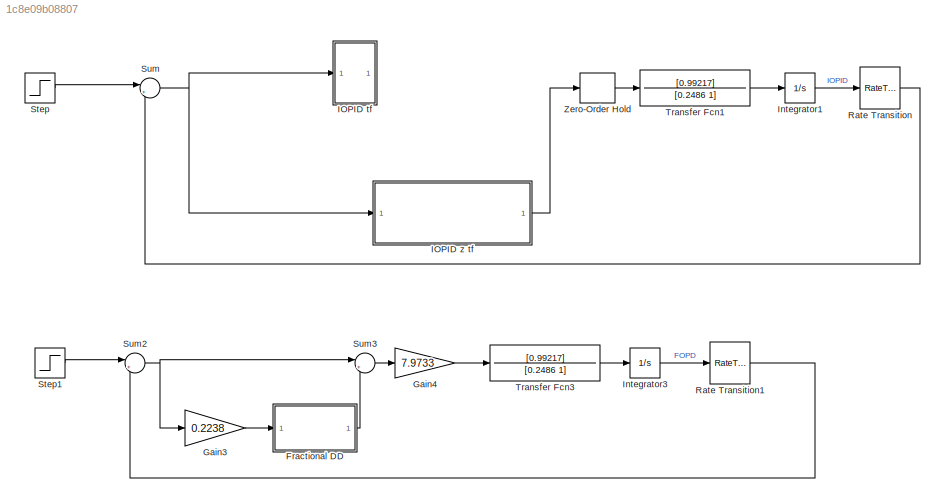
MODEL slx_1c8e09b08807
KIND model
CONFIG AbsTol = auto
CONFIG EnableMultiTasking = off
CONFIG FixedStep = 0.01
CONFIG MaxStep = auto
CONFIG MinStep = auto
CONFIG RelTol = 1e-3
CONFIG SampleTimeConstraint = Unconstrained
CONFIG Solver = ode14x
CONFIG SolverName = ode14x
CONFIG StartTime = 0.0
CONFIG StopTime = 10.0
WORKSPACE source: MAT-file member
WORKSPACE MCOS: class17 (value not decoded)
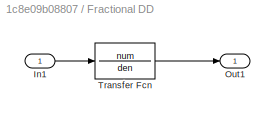
BLOCK [SubSystem] Fractional DD
  Ports = [1, 1]
  RequestExecContextInheritance = off
  Variant = off
BLOCK [Inport] Fractional DD/In1
  IconDisplay = Port number
BLOCK [Outport] Fractional DD/Out1
  IconDisplay = Port number
BLOCK [TransferFcn] Fractional DD/Transfer Fcn
  Denominator = den
  Numerator = num
BLOCK [Gain] Gain3
  Gain = 0.2238
  OutDataTypeStr = Inherit: Inherit via internal rule
  ParamDataTypeStr = Inherit: Inherit via internal rule
  SaturateOnIntegerOverflow = off
BLOCK [Gain] Gain4
  Gain = 7.9733
  OutDataTypeStr = Inherit: Inherit via internal rule
  ParamDataTypeStr = Inherit: Inherit via internal rule
  SaturateOnIntegerOverflow = off
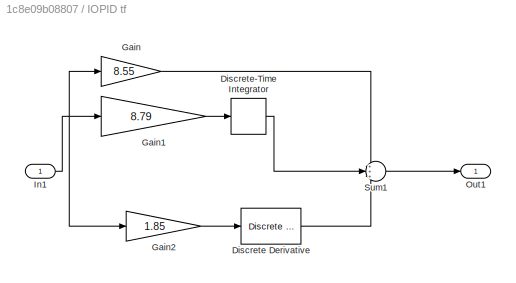
BLOCK [SubSystem] IOPID tf
  Commented = on
  Ports = [1, 1]
  RequestExecContextInheritance = off
  Variant = off
BLOCK [Reference] IOPID tf/Discrete Derivative  REF=simulink/Discrete/Discrete Derivative
  Ports = [1, 1]
  SourceBlock = simulink/Discrete/Discrete Derivative
  SourceProductBaseCode = SL
  SourceProductName = Simulink
  SourceType = Discrete Derivative
BLOCK [DiscreteIntegrator] IOPID tf/Discrete-Time Integrator
  ICPrevOutput = DiscIntNeverNeededParam
  ICPrevScaledInput = DiscIntNeverNeededParam
  InitialConditionSetting = State (most efficient)
  Ports = [1, 1]
  SampleTime = -1
BLOCK [Gain] IOPID tf/Gain
  Gain = 8.55
  OutDataTypeStr = Inherit: Inherit via internal rule
  ParamDataTypeStr = Inherit: Inherit via internal rule
  SaturateOnIntegerOverflow = off
BLOCK [Gain] IOPID tf/Gain1
  Gain = 8.79
  OutDataTypeStr = Inherit: Inherit via internal rule
  ParamDataTypeStr = Inherit: Inherit via internal rule
  SaturateOnIntegerOverflow = off
BLOCK [Gain] IOPID tf/Gain2
  Gain = 1.85
  OutDataTypeStr = Inherit: Inherit via internal rule
  ParamDataTypeStr = Inherit: Inherit via internal rule
  SaturateOnIntegerOverflow = off
BLOCK [Inport] IOPID tf/In1
  IconDisplay = Port number
BLOCK [Outport] IOPID tf/Out1
  IconDisplay = Port number
BLOCK [Sum] IOPID tf/Sum1
  IconShape = round
  InputSameDT = off
  Inputs = +++
  OutDataTypeStr = Inherit: Inherit via internal rule
  Ports = [3, 1]
  SaturateOnIntegerOverflow = off
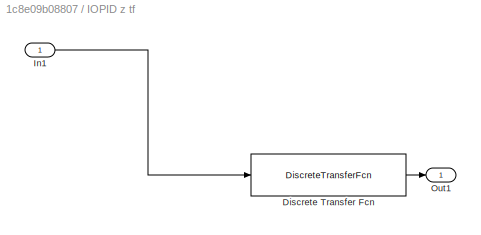
BLOCK [SubSystem] IOPID z tf
  Commented = on
  Ports = [1, 1]
  RequestExecContextInheritance = off
  Variant = off
BLOCK [DiscreteTransferFcn] IOPID z tf/Discrete Transfer Fcn
  Denominator = den
  InputPortMap = u0
  Numerator = num
  Ports = [1, 1]
BLOCK [Inport] IOPID z tf/In1
  IconDisplay = Port number
BLOCK [Outport] IOPID z tf/Out1
  IconDisplay = Port number
BLOCK [Integrator] Integrator1
  Ports = [1, 1]
BLOCK [Integrator] Integrator3
  Ports = [1, 1]
BLOCK [RateTransition] Rate Transition
  OutPortSampleTime = 0.3
BLOCK [RateTransition] Rate Transition1
  OutPortSampleTime = 0.3
BLOCK [Step] Step
  SampleTime = 0.3
BLOCK [Step] Step1
  SampleTime = 0
BLOCK [Sum] Sum
  IconShape = round
  InputSameDT = off
  Inputs = |+-
  OutDataTypeStr = Inherit: Inherit via internal rule
  Ports = [2, 1]
  SaturateOnIntegerOverflow = off
BLOCK [Sum] Sum2
  IconShape = round
  InputSameDT = off
  Inputs = |+-
  OutDataTypeStr = Inherit: Inherit via internal rule
  Ports = [2, 1]
  SaturateOnIntegerOverflow = off
BLOCK [Sum] Sum3
  IconShape = round
  InputSameDT = off
  Inputs = |++
  OutDataTypeStr = Inherit: Inherit via internal rule
  Ports = [2, 1]
  SaturateOnIntegerOverflow = off
BLOCK [TransferFcn] Transfer Fcn1
  Denominator = [0.2486 1]
  Numerator = [0.99217]
BLOCK [TransferFcn] Transfer Fcn3
  Denominator = [0.2486 1]
  Numerator = [0.99217]
BLOCK [ZeroOrderHold] Zero-Order Hold
  SampleTime = -1
LINE Fractional DD/In1:1 -> Fractional DD/Transfer Fcn:1
LINE Fractional DD/Transfer Fcn:1 -> Fractional DD/Out1:1
LINE Fractional DD:1 -> Sum3:2
LINE Gain3:1 -> Fractional DD:1
LINE Gain4:1 -> Transfer Fcn3:1
LINE IOPID tf/Discrete Derivative:1 -> IOPID tf/Sum1:3
LINE IOPID tf/Discrete-Time Integrator:1 -> IOPID tf/Sum1:2
LINE IOPID tf/Gain1:1 -> IOPID tf/Discrete-Time Integrator:1
LINE IOPID tf/Gain2:1 -> IOPID tf/Discrete Derivative:1
LINE IOPID tf/Gain:1 -> IOPID tf/Sum1:1
NET IOPID tf/In1:1 -> IOPID tf/Gain1:1, IOPID tf/Gain2:1, IOPID tf/Gain:1
LINE IOPID tf/Sum1:1 -> IOPID tf/Out1:1
LINE IOPID z tf/Discrete Transfer Fcn:1 -> IOPID z tf/Out1:1
LINE IOPID z tf/In1:1 -> IOPID z tf/Discrete Transfer Fcn:1
LINE IOPID z tf:1 -> Zero-Order Hold:1
LINE Integrator1:1 -> Rate Transition:1
LINE Integrator3:1 -> Rate Transition1:1
LINE Rate Transition1:1 -> Sum2:2
LINE Rate Transition:1 -> Sum:2
LINE Step1:1 -> Sum2:1
LINE Step:1 -> Sum:1
NET Sum2:1 -> Gain3:1, Sum3:1
LINE Sum3:1 -> Gain4:1
NET Sum:1 -> IOPID tf:1, IOPID z tf:1
LINE Transfer Fcn1:1 -> Integrator1:1
LINE Transfer Fcn3:1 -> Integrator3:1
LINE Zero-Order Hold:1 -> Transfer Fcn1:1
note: NET lines group one-source signal fan-out (src -> all destinations, sorted); 1:1 wires keep LINE
